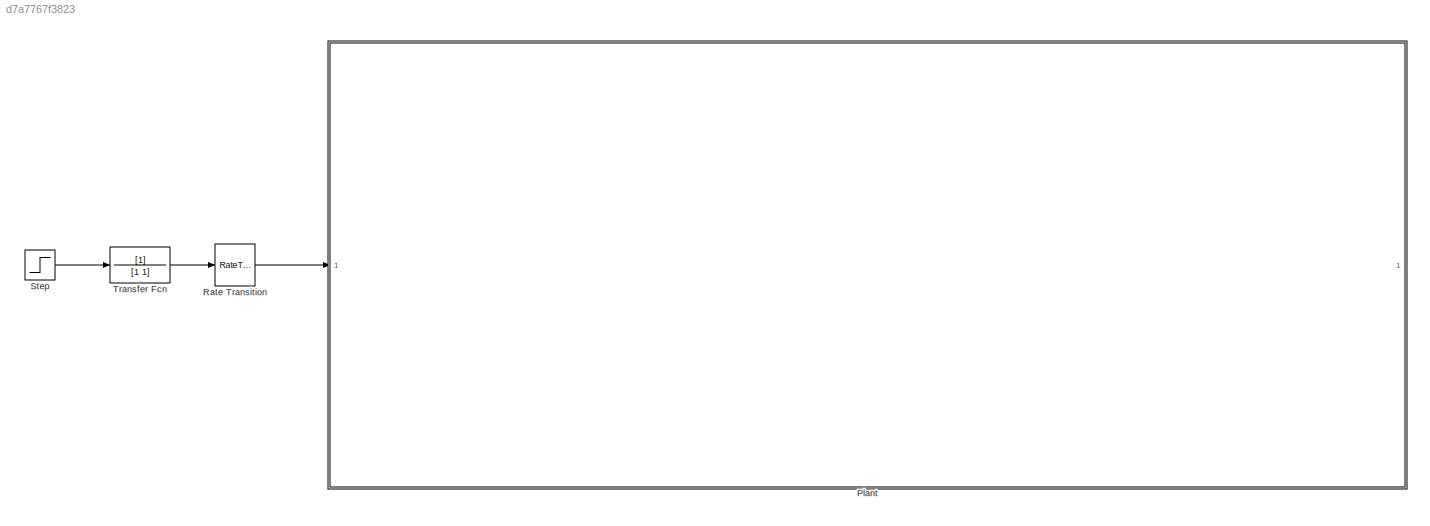
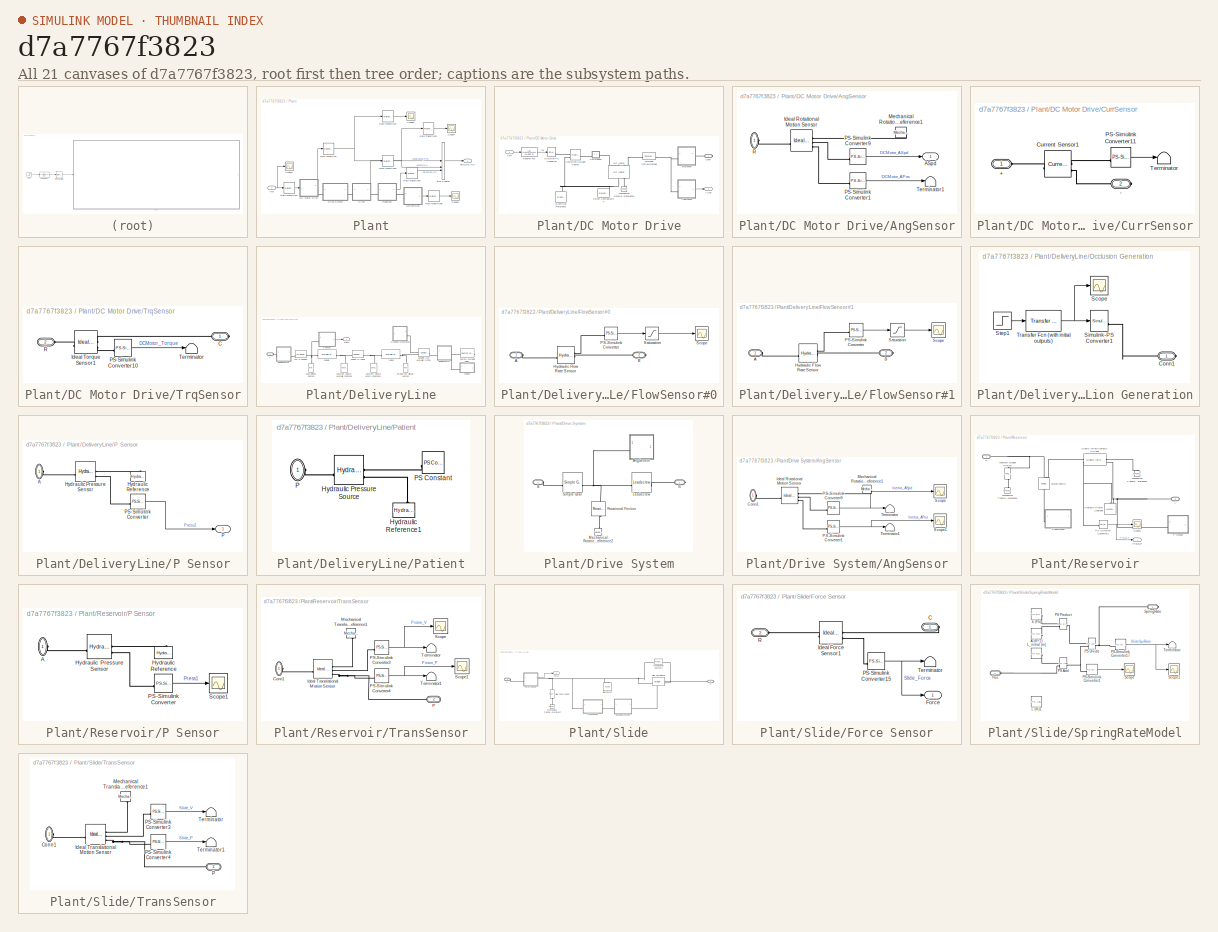
[diagram: thumbnail index - all 21 canvases of the model, root first then tree order]
MODEL slx_d7a7767f3823
KIND model
CONFIG AbsTol = auto
CONFIG EnableMultiTasking = off
CONFIG FixedStep = auto
CONFIG MaxStep = 0.001
CONFIG MinStep = auto
CONFIG RelTol = 1e-3
CONFIG SampleTimeConstraint = Unconstrained
CONFIG SolverName = ode23t
CONFIG StartTime = 0.0
CONFIG StopTime = 10.0
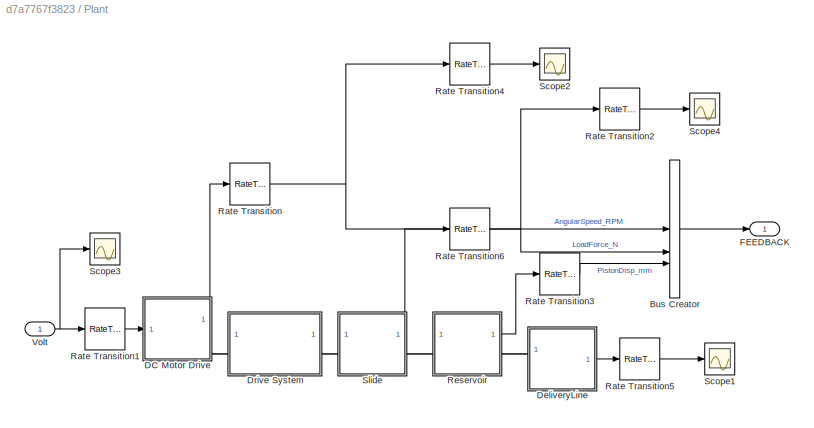
BLOCK [SubSystem] Plant
BLOCK [BusCreator] Plant/Bus Creator
  DisplayOption = bar
  InheritFromInputs = on
  Inputs = 'AngularSpeed_RPM','LoadForce_N','PistonDisp_mm'
  NonVirtualBus = on
  OutDataTypeStr = Bus: FEEDBACK
BLOCK [SubSystem] Plant/DC Motor Drive
BLOCK [Outport] Plant/DC Motor Drive/ASpd
BLOCK [SubSystem] Plant/DC Motor Drive/AngSensor
BLOCK [Outport] Plant/DC Motor Drive/AngSensor/ASpd
BLOCK [Reference] Plant/DC Motor Drive/AngSensor/Ideal Rotational Motion Sensor  REF=fl_lib/Mechanical/Mechanical Sensors/Ideal Rotational
Motion Sensor
  SourceBlock = fl_lib/Mechanical/Mechanical Sensors/Ideal Rotational\nMotion Sensor
  SourceType = Ideal Rotational\nMotion Sensor
BLOCK [Reference] Plant/DC Motor Drive/AngSensor/Mechanical Rotational Reference1  REF=fl_lib/Mechanical/Rotational Elements/Mechanical
Rotational Reference
  NameLocation = top
  SourceBlock = fl_lib/Mechanical/Rotational Elements/Mechanical\nRotational Reference
  SourceType = Mechanical\nRotational Reference
BLOCK [Reference] Plant/DC Motor Drive/AngSensor/PS-Simulink Converter1  REF=nesl_utility/PS-Simulink
Converter
  SourceBlock = nesl_utility/PS-Simulink\nConverter
  SourceType = PS-Simulink\nConverter
BLOCK [Reference] Plant/DC Motor Drive/AngSensor/PS-Simulink Converter9  REF=nesl_utility/PS-Simulink
Converter
  NameLocation = top
  SourceBlock = nesl_utility/PS-Simulink\nConverter
  SourceType = PS-Simulink\nConverter
BLOCK [PMIOPort] Plant/DC Motor Drive/AngSensor/R
  Side = Left
BLOCK [Terminator] Plant/DC Motor Drive/AngSensor/Terminator1
BLOCK [PMIOPort] Plant/DC Motor Drive/Conn
  Side = Right
BLOCK [Reference] Plant/DC Motor Drive/Controlled Voltage Source  REF=fl_lib/Electrical/Electrical Sources/Controlled Voltage
Source
  SourceBlock = fl_lib/Electrical/Electrical Sources/Controlled Voltage\nSource
  SourceType = Controlled Voltage\nSource
BLOCK [SubSystem] Plant/DC Motor Drive/CurrSensor
BLOCK [PMIOPort] Plant/DC Motor Drive/CurrSensor/+
  Side = Left
BLOCK [PMIOPort] Plant/DC Motor Drive/CurrSensor/-
  Port = 2
  Side = Right
BLOCK [Reference] Plant/DC Motor Drive/CurrSensor/Current Sensor1  REF=fl_lib/Electrical/Electrical Sensors/Current Sensor
  SourceBlock = fl_lib/Electrical/Electrical Sensors/Current Sensor
  SourceType = Current Sensor
BLOCK [Reference] Plant/DC Motor Drive/CurrSensor/PS-Simulink Converter11  REF=nesl_utility/PS-Simulink
Converter
  NameLocation = top
  SourceBlock = nesl_utility/PS-Simulink\nConverter
  SourceType = PS-Simulink\nConverter
BLOCK [Terminator] Plant/DC Motor Drive/CurrSensor/Terminator
BLOCK [Reference] Plant/DC Motor Drive/DC Motor  REF=ee_lib/Electromechanical/Brushed Motors/DC Motor
  NameLocation = right
  SourceBlock = ee_lib/Electromechanical/Brushed Motors/DC Motor
  SourceType = DC Motor
BLOCK [Reference] Plant/DC Motor Drive/Electrical Reference  REF=fl_lib/Electrical/Electrical Elements/Electrical Reference
  NameLocation = left
  SourceBlock = fl_lib/Electrical/Electrical Elements/Electrical Reference
  SourceType = Electrical Reference
BLOCK [Reference] Plant/DC Motor Drive/Mechanical Rotational Reference  REF=fl_lib/Mechanical/Rotational Elements/Mechanical
Rotational Reference
  NameLocation = right
  SourceBlock = fl_lib/Mechanical/Rotational Elements/Mechanical\nRotational Reference
  SourceType = Mechanical\nRotational Reference
BLOCK [Reference] Plant/DC Motor Drive/Simulink-PS Converter  REF=nesl_utility/Simulink-PS
Converter
  SourceBlock = nesl_utility/Simulink-PS\nConverter
  SourceType = Simulink-PS\nConverter
BLOCK [Reference] Plant/DC Motor Drive/Solver Configuration  REF=nesl_utility/Solver
Configuration
  SourceBlock = nesl_utility/Solver\nConfiguration
  SourceType = Solver\nConfiguration
BLOCK [Reference] Plant/DC Motor Drive/Torsional Spring-Damper  REF=sdl_lib/Couplings & Drives/Torsional
Spring-Damper
  SourceBlock = sdl_lib/Couplings & Drives/Torsional\nSpring-Damper
  SourceType = Torsional\nSpring-Damper
BLOCK [TransferFcn] Plant/DC Motor Drive/Transfer Fcn
  Denominator = [0.001 1]
BLOCK [SubSystem] Plant/DC Motor Drive/TrqSensor
BLOCK [PMIOPort] Plant/DC Motor Drive/TrqSensor/C
  Side = Right
BLOCK [Reference] Plant/DC Motor Drive/TrqSensor/Ideal Torque Sensor1  REF=fl_lib/Mechanical/Mechanical Sensors/Ideal Torque Sensor
  NameLocation = top
  SourceBlock = fl_lib/Mechanical/Mechanical Sensors/Ideal Torque Sensor
  SourceType = Ideal Torque Sensor
BLOCK [Reference] Plant/DC Motor Drive/TrqSensor/PS-Simulink Converter10  REF=nesl_utility/PS-Simulink
Converter
  SourceBlock = nesl_utility/PS-Simulink\nConverter
  SourceType = PS-Simulink\nConverter
BLOCK [PMIOPort] Plant/DC Motor Drive/TrqSensor/R
  Port = 2
  Side = Left
BLOCK [Terminator] Plant/DC Motor Drive/TrqSensor/Terminator
BLOCK [Inport] Plant/DC Motor Drive/Volt
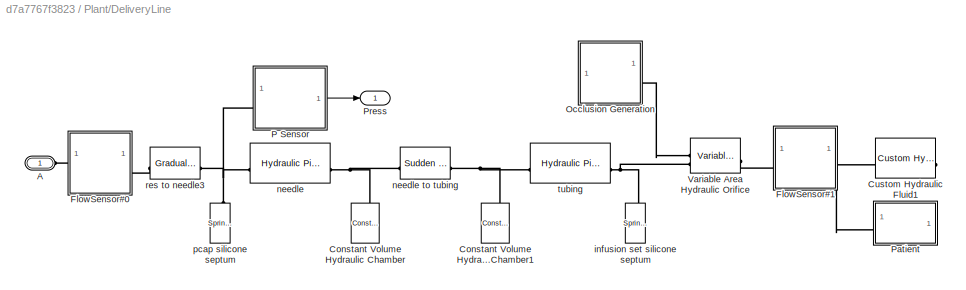
BLOCK [SubSystem] Plant/DeliveryLine
BLOCK [PMIOPort] Plant/DeliveryLine/A
  Side = Left
BLOCK [Reference] Plant/DeliveryLine/Constant Volume Hydraulic Chamber  REF=fl_lib/Hydraulic/Hydraulic Elements/Constant Volume
Hydraulic Chamber
  NameLocation = right
  SourceBlock = fl_lib/Hydraulic/Hydraulic Elements/Constant Volume\nHydraulic Chamber
  SourceType = Constant Volume\nHydraulic Chamber
BLOCK [Reference] Plant/DeliveryLine/Constant Volume Hydraulic Chamber1  REF=fl_lib/Hydraulic/Hydraulic Elements/Constant Volume
Hydraulic Chamber
  NameLocation = right
  SourceBlock = fl_lib/Hydraulic/Hydraulic Elements/Constant Volume\nHydraulic Chamber
  SourceType = Constant Volume\nHydraulic Chamber
BLOCK [Reference] Plant/DeliveryLine/Custom Hydraulic Fluid1  REF=fl_lib/Hydraulic/Hydraulic Utilities/Custom Hydraulic
Fluid
  NameLocation = top
  SourceBlock = fl_lib/Hydraulic/Hydraulic Utilities/Custom Hydraulic\nFluid
  SourceType = Custom Hydraulic\nFluid
BLOCK [SubSystem] Plant/DeliveryLine/FlowSensor#0
BLOCK [PMIOPort] Plant/DeliveryLine/FlowSensor#0/A
  Side = Left
BLOCK [PMIOPort] Plant/DeliveryLine/FlowSensor#0/B
  Port = 2
  Side = Right
BLOCK [Reference] Plant/DeliveryLine/FlowSensor#0/Hydraulic Flow Rate Sensor  REF=fl_lib/Hydraulic/Hydraulic Sensors/Hydraulic Flow Rate
Sensor
  SourceBlock = fl_lib/Hydraulic/Hydraulic Sensors/Hydraulic Flow Rate\nSensor
  SourceType = Hydraulic Flow Rate\nSensor
BLOCK [Reference] Plant/DeliveryLine/FlowSensor#0/PS-Simulink Converter  REF=nesl_utility/PS-Simulink
Converter
  SourceBlock = nesl_utility/PS-Simulink\nConverter
  SourceType = PS-Simulink\nConverter
BLOCK [Saturate] Plant/DeliveryLine/FlowSensor#0/Saturation
  LowerLimit = 0
  UpperLimit = inf
BLOCK [Scope] Plant/DeliveryLine/FlowSensor#0/Scope
  Floating = off
  NumInputPorts = 1
  ScopeSpecificationString = Simulink.scopes.TimeScopeBlockCfg('CurrentConfiguration', extmgr.ConfigurationSet(extmgr.Configuration('Core','General UI',true),extmgr.Configuration('Core','Source UI',true),extmgr.Configuration('Sources','WiredSimulink',true,'DataLoggingVariableName','ScopeData4'),extmgr.Configuration('Visuals','Time Domain',true,'SerializedDisplays',{struct('MinYLimReal','-11.21441','MaxYLimReal','100.92966','Y...<+1485ch>
BLOCK [SubSystem] Plant/DeliveryLine/FlowSensor#1
BLOCK [PMIOPort] Plant/DeliveryLine/FlowSensor#1/A
  Side = Left
BLOCK [PMIOPort] Plant/DeliveryLine/FlowSensor#1/B
  Port = 2
  Side = Right
BLOCK [Reference] Plant/DeliveryLine/FlowSensor#1/Hydraulic Flow Rate Sensor  REF=fl_lib/Hydraulic/Hydraulic Sensors/Hydraulic Flow Rate
Sensor
  SourceBlock = fl_lib/Hydraulic/Hydraulic Sensors/Hydraulic Flow Rate\nSensor
  SourceType = Hydraulic Flow Rate\nSensor
BLOCK [Reference] Plant/DeliveryLine/FlowSensor#1/PS-Simulink Converter  REF=nesl_utility/PS-Simulink
Converter
  SourceBlock = nesl_utility/PS-Simulink\nConverter
  SourceType = PS-Simulink\nConverter
BLOCK [Saturate] Plant/DeliveryLine/FlowSensor#1/Saturation
  Commented = through
  LowerLimit = 0
  UpperLimit = 5000
BLOCK [Scope] Plant/DeliveryLine/FlowSensor#1/Scope
  Floating = off
  NumInputPorts = 1
  ScopeSpecificationString = Simulink.scopes.TimeScopeBlockCfg('CurrentConfiguration', extmgr.ConfigurationSet(extmgr.Configuration('Core','General UI',true),extmgr.Configuration('Core','Source UI',true),extmgr.Configuration('Sources','WiredSimulink',true,'DataLoggingVariableName','ScopeData4'),extmgr.Configuration('Visuals','Time Domain',true,'SerializedDisplays',{struct('MinYLimReal','-42.41201','MaxYLimReal','113.06629','Y...<+1486ch>
BLOCK [SubSystem] Plant/DeliveryLine/Occlusion Generation
BLOCK [PMIOPort] Plant/DeliveryLine/Occlusion Generation/Conn1
  Side = Right
BLOCK [Scope] Plant/DeliveryLine/Occlusion Generation/Scope
  Floating = off
  NumInputPorts = 1
  ScopeSpecificationString = Simulink.scopes.TimeScopeBlockCfg('CurrentConfiguration', extmgr.ConfigurationSet(extmgr.Configuration('Core','General UI',true),extmgr.Configuration('Core','Source UI',true),extmgr.Configuration('Sources','WiredSimulink',true,'DataLoggingVariableName','ScopeData1'),extmgr.Configuration('Visuals','Time Domain',true,'SerializedDisplays',{struct('MinYLimReal','-0.00000001','MaxYLimReal','0.00000013'...<+1418ch>
BLOCK [Reference] Plant/DeliveryLine/Occlusion Generation/Simulink-PS Converter1  REF=nesl_utility/Simulink-PS
Converter
  SourceBlock = nesl_utility/Simulink-PS\nConverter
  SourceType = Simulink-PS\nConverter
BLOCK [Step] Plant/DeliveryLine/Occlusion Generation/Step1
  After = reserv_str.Tubing.Area*(1-const_Occl_Pct)
  Before = reserv_str.Tubing.Area
  SampleTime = 0
  Time = reserv_str.Occl.Time
BLOCK [Reference] Plant/DeliveryLine/Occlusion Generation/Transfer Fcn (with initial outputs)  REF=simulink_extras/Additional
Linear/Transfer Fcn
(with initial outputs)
  SourceBlock = simulink_extras/Additional\nLinear/Transfer Fcn\n(with initial outputs)
  SourceType = Transfer Function with Initial Outputs
BLOCK [SubSystem] Plant/DeliveryLine/P Sensor
BLOCK [PMIOPort] Plant/DeliveryLine/P Sensor/A
  Side = Left
BLOCK [Reference] Plant/DeliveryLine/P Sensor/Hydraulic Pressure Sensor  REF=fl_lib/Hydraulic/Hydraulic Sensors/Hydraulic Pressure
Sensor
  SourceBlock = fl_lib/Hydraulic/Hydraulic Sensors/Hydraulic Pressure\nSensor
  SourceType = Hydraulic Pressure\nSensor
BLOCK [Reference] Plant/DeliveryLine/P Sensor/Hydraulic Reference  REF=fl_lib/Hydraulic/Hydraulic Elements/Hydraulic Reference
  NameLocation = right
  SourceBlock = fl_lib/Hydraulic/Hydraulic Elements/Hydraulic Reference
  SourceType = Hydraulic Reference
BLOCK [Outport] Plant/DeliveryLine/P Sensor/P
BLOCK [Reference] Plant/DeliveryLine/P Sensor/PS-Simulink Converter  REF=nesl_utility/PS-Simulink
Converter
  SourceBlock = nesl_utility/PS-Simulink\nConverter
  SourceType = PS-Simulink\nConverter
BLOCK [SubSystem] Plant/DeliveryLine/Patient
BLOCK [Reference] Plant/DeliveryLine/Patient/Hydraulic Pressure Source  REF=fl_lib/Hydraulic/Hydraulic Sources/Hydraulic Pressure
Source
  SourceBlock = fl_lib/Hydraulic/Hydraulic Sources/Hydraulic Pressure\nSource
  SourceType = Hydraulic Pressure\nSource
BLOCK [Reference] Plant/DeliveryLine/Patient/Hydraulic Reference1  REF=fl_lib/Hydraulic/Hydraulic Elements/Hydraulic Reference
  NameLocation = right
  SourceBlock = fl_lib/Hydraulic/Hydraulic Elements/Hydraulic Reference
  SourceType = Hydraulic Reference
BLOCK [PMIOPort] Plant/DeliveryLine/Patient/P
  Side = Left
BLOCK [Reference] Plant/DeliveryLine/Patient/PS Constant  REF=fl_lib/Physical Signals/Sources/PS Constant
  SourceBlock = fl_lib/Physical Signals/Sources/PS Constant
  SourceType = PS Constant
BLOCK [Outport] Plant/DeliveryLine/Press
BLOCK [Reference] Plant/DeliveryLine/Variable Area Hydraulic Orifice  REF=fl_lib/Hydraulic/Hydraulic Elements/Variable Area
Hydraulic Orifice
  SourceBlock = fl_lib/Hydraulic/Hydraulic Elements/Variable Area\nHydraulic Orifice
  SourceType = Variable Area\nHydraulic Orifice
BLOCK [Reference] Plant/DeliveryLine/infusion set silicone septum  REF=sh_lib/Accumulators/Spring-Loaded
Accumulator
  NameLocation = right
  SourceBlock = sh_lib/Accumulators/Spring-Loaded\nAccumulator
  SourceType = Spring-Loaded\nAccumulator
BLOCK [Reference] Plant/DeliveryLine/needle  REF=sh_lib/Pipelines/Hydraulic Pipeline
  SourceBlock = sh_lib/Pipelines/Hydraulic Pipeline
  SourceType = Hydraulic Pipeline
BLOCK [Reference] Plant/DeliveryLine/needle to tubing  REF=sh_lib/Local Hydraulic
Resistances/Sudden Area Change
  SourceBlock = sh_lib/Local Hydraulic\nResistances/Sudden Area Change
  SourceType = Sudden Area Change
BLOCK [Reference] Plant/DeliveryLine/pcap silicone septum  REF=sh_lib/Accumulators/Spring-Loaded
Accumulator
  NameLocation = right
  SourceBlock = sh_lib/Accumulators/Spring-Loaded\nAccumulator
  SourceType = Spring-Loaded\nAccumulator
BLOCK [Reference] Plant/DeliveryLine/res to needle3  REF=sh_lib/Local Hydraulic
Resistances/Gradual Area Change
  SourceBlock = sh_lib/Local Hydraulic\nResistances/Gradual Area Change
  SourceType = Gradual Area Change
BLOCK [Reference] Plant/DeliveryLine/tubing  REF=sh_lib/Pipelines/Hydraulic Pipeline
  SourceBlock = sh_lib/Pipelines/Hydraulic Pipeline
  SourceType = Hydraulic Pipeline
BLOCK [SubSystem] Plant/Drive System
BLOCK [SubSystem] Plant/Drive System/AngSensor
BLOCK [PMIOPort] Plant/Drive System/AngSensor/Conn1
  NameLocation = top
  Side = Left
BLOCK [Reference] Plant/Drive System/AngSensor/Ideal Rotational Motion Sensor  REF=fl_lib/Mechanical/Mechanical Sensors/Ideal Rotational
Motion Sensor
  SourceBlock = fl_lib/Mechanical/Mechanical Sensors/Ideal Rotational\nMotion Sensor
  SourceType = Ideal Rotational\nMotion Sensor
BLOCK [Reference] Plant/Drive System/AngSensor/Mechanical Rotational Reference1  REF=fl_lib/Mechanical/Rotational Elements/Mechanical
Rotational Reference
  NameLocation = top
  SourceBlock = fl_lib/Mechanical/Rotational Elements/Mechanical\nRotational Reference
  SourceType = Mechanical\nRotational Reference
BLOCK [Reference] Plant/Drive System/AngSensor/PS-Simulink Converter1  REF=nesl_utility/PS-Simulink
Converter
  SourceBlock = nesl_utility/PS-Simulink\nConverter
  SourceType = PS-Simulink\nConverter
BLOCK [Reference] Plant/Drive System/AngSensor/PS-Simulink Converter9  REF=nesl_utility/PS-Simulink
Converter
  NameLocation = top
  SourceBlock = nesl_utility/PS-Simulink\nConverter
  SourceType = PS-Simulink\nConverter
BLOCK [Scope] Plant/Drive System/AngSensor/Scope
  Floating = off
  NumInputPorts = 1
  ScopeSpecificationString = Simulink.scopes.TimeScopeBlockCfg('CurrentConfiguration', extmgr.ConfigurationSet(extmgr.Configuration('Core','General UI',true),extmgr.Configuration('Core','Source UI',true),extmgr.Configuration('Sources','WiredSimulink',true),extmgr.Configuration('Visuals','Time Domain',true,'SerializedDisplays',{struct('MinYLimReal','-1.50405','MaxYLimReal','0.16757','YLabelReal','','MinYLimMag','0.00000','MaxY...<+1660ch>
BLOCK [Scope] Plant/Drive System/AngSensor/Scope1
  Floating = off
  NumInputPorts = 1
  ScopeSpecificationString = Simulink.scopes.TimeScopeBlockCfg('CurrentConfiguration', extmgr.ConfigurationSet(extmgr.Configuration('Core','General UI',true),extmgr.Configuration('Core','Source UI',true),extmgr.Configuration('Sources','WiredSimulink',true,'DataLoggingVariableName','ScopeData1'),extmgr.Configuration('Visuals','Time Domain',true,'SerializedDisplays',{struct('MinYLimReal','-187.69904','MaxYLimReal','20.85545','Y...<+1383ch>
BLOCK [Terminator] Plant/Drive System/AngSensor/Terminator
BLOCK [Terminator] Plant/Drive System/AngSensor/Terminator1
BLOCK [PMIOPort] Plant/Drive System/B
  Side = Left
BLOCK [Reference] Plant/Drive System/Leadscrew  REF=sdl_lib/Gears/Rotational-
Translational/Leadscrew
  SourceBlock = sdl_lib/Gears/Rotational-\nTranslational/Leadscrew
  SourceType = Leadscrew
BLOCK [Reference] Plant/Drive System/Mechanical Rotational Reference2  REF=fl_lib/Mechanical/Rotational Elements/Mechanical
Rotational Reference
  NameLocation = right
  SourceBlock = fl_lib/Mechanical/Rotational Elements/Mechanical\nRotational Reference
  SourceType = Mechanical\nRotational Reference
BLOCK [PMIOPort] Plant/Drive System/N
  Port = 2
  Side = Right
BLOCK [Reference] Plant/Drive System/Rotational Friction  REF=fl_lib/Mechanical/Rotational Elements/Rotational Friction
  NameLocation = right
  SourceBlock = fl_lib/Mechanical/Rotational Elements/Rotational Friction
  SourceType = Rotational Friction
BLOCK [Reference] Plant/Drive System/Simple Gear  REF=sdl_lib/Gears/Simple Gear
  SourceBlock = sdl_lib/Gears/Simple Gear
  SourceType = Simple Gear
BLOCK [Outport] Plant/FEEDBACK
  OutDataTypeStr = Bus: FEEDBACK
BLOCK [RateTransition] Plant/Rate Transition
  OutPortSampleTime = 0.001
BLOCK [RateTransition] Plant/Rate Transition1
BLOCK [RateTransition] Plant/Rate Transition2
  OutPortSampleTime = 0.01
BLOCK [RateTransition] Plant/Rate Transition3
  OutPortSampleTime = 0.001
BLOCK [RateTransition] Plant/Rate Transition4
  OutPortSampleTime = 0.01
BLOCK [RateTransition] Plant/Rate Transition5
  OutPortSampleTime = 0.01
BLOCK [RateTransition] Plant/Rate Transition6
  OutPortSampleTime = 0.001
BLOCK [SubSystem] Plant/Reservoir
BLOCK [PMIOPort] Plant/Reservoir/A
  Port = 2
  Side = Right
BLOCK [Reference] Plant/Reservoir/Hydraulic Piston Chamber  REF=fl_lib/Hydraulic/Hydraulic Elements/Hydraulic Piston
Chamber
  Commented = on
  NameLocation = right
  SourceBlock = fl_lib/Hydraulic/Hydraulic Elements/Hydraulic Piston\nChamber
  SourceType = Hydraulic Piston\nChamber
BLOCK [Reference] Plant/Reservoir/Mechanical Translational Reference1  REF=fl_lib/Mechanical/Translational
Elements/Mechanical
Translational
Reference
  NameLocation = right
  SourceBlock = fl_lib/Mechanical/Translational\nElements/Mechanical\nTranslational\nReference
  SourceType = Mechanical\nTranslational\nReference
BLOCK [Reference] Plant/Reservoir/Mechanical Translational Reference2  REF=fl_lib/Mechanical/Translational
Elements/Mechanical
Translational
Reference
  NameLocation = right
  SourceBlock = fl_lib/Mechanical/Translational\nElements/Mechanical\nTranslational\nReference
  SourceType = Mechanical\nTranslational\nReference
BLOCK [SubSystem] Plant/Reservoir/P Sensor
BLOCK [PMIOPort] Plant/Reservoir/P Sensor/A
  Side = Left
BLOCK [Reference] Plant/Reservoir/P Sensor/Hydraulic Pressure Sensor  REF=fl_lib/Hydraulic/Hydraulic Sensors/Hydraulic Pressure
Sensor
  SourceBlock = fl_lib/Hydraulic/Hydraulic Sensors/Hydraulic Pressure\nSensor
  SourceType = Hydraulic Pressure\nSensor
BLOCK [Reference] Plant/Reservoir/P Sensor/Hydraulic Reference  REF=fl_lib/Hydraulic/Hydraulic Elements/Hydraulic Reference
  NameLocation = right
  SourceBlock = fl_lib/Hydraulic/Hydraulic Elements/Hydraulic Reference
  SourceType = Hydraulic Reference
BLOCK [Reference] Plant/Reservoir/P Sensor/PS-Simulink Converter  REF=nesl_utility/PS-Simulink
Converter
  SourceBlock = nesl_utility/PS-Simulink\nConverter
  SourceType = PS-Simulink\nConverter
BLOCK [Scope] Plant/Reservoir/P Sensor/Scope1
  Floating = off
  NumInputPorts = 1
  ScopeSpecificationString = Simulink.scopes.TimeScopeBlockCfg('CurrentConfiguration', extmgr.ConfigurationSet(extmgr.Configuration('Core','General UI',true),extmgr.Configuration('Core','Source UI',true),extmgr.Configuration('Sources','WiredSimulink',true),extmgr.Configuration('Visuals','Time Domain',true,'SerializedDisplays',{struct('MinYLimReal','93703.89588','MaxYLimReal','119658.32558','YLabelReal','','MinYLimMag','93703....<+1406ch>
BLOCK [Reference] Plant/Reservoir/PS-Simulink Converter2  REF=nesl_utility/PS-Simulink
Converter
  SourceBlock = nesl_utility/PS-Simulink\nConverter
  SourceType = PS-Simulink\nConverter
BLOCK [Outport] Plant/Reservoir/Piston_P
BLOCK [PMIOPort] Plant/Reservoir/R
  Side = Left
BLOCK [Scope] Plant/Reservoir/Scope2
  Floating = off
  NumInputPorts = 1
  ScopeSpecificationString = Simulink.scopes.TimeScopeBlockCfg('CurrentConfiguration', extmgr.ConfigurationSet(extmgr.Configuration('Core','General UI',true),extmgr.Configuration('Core','Source UI',true),extmgr.Configuration('Sources','WiredSimulink',true,'DataLoggingVariableName','ScopeData6'),extmgr.Configuration('Visuals','Time Domain',true,'SerializedDisplays',{struct('MinYLimReal','-26.58008','MaxYLimReal','-26.5363','YL...<+1728ch>
BLOCK [Reference] Plant/Reservoir/Single-Acting Hydraulic Cylinder  REF=sh_lib/Hydraulic Cylinders/Single-Acting
Hydraulic Cylinder
  SourceBlock = sh_lib/Hydraulic Cylinders/Single-Acting\nHydraulic Cylinder
  SourceType = Single-Acting\nHydraulic Cylinder
BLOCK [SubSystem] Plant/Reservoir/TransSensor
BLOCK [PMIOPort] Plant/Reservoir/TransSensor/Conn1
  Side = Left
BLOCK [Reference] Plant/Reservoir/TransSensor/Ideal Translational Motion Sensor  REF=fl_lib/Mechanical/Mechanical Sensors/Ideal Translational
Motion Sensor
  SourceBlock = fl_lib/Mechanical/Mechanical Sensors/Ideal Translational\nMotion Sensor
  SourceType = Ideal Translational\nMotion Sensor
BLOCK [Reference] Plant/Reservoir/TransSensor/Mechanical Translational Reference1  REF=fl_lib/Mechanical/Translational
Elements/Mechanical
Translational
Reference
  NameLocation = left
  SourceBlock = fl_lib/Mechanical/Translational\nElements/Mechanical\nTranslational\nReference
  SourceType = Mechanical\nTranslational\nReference
BLOCK [PMIOPort] Plant/Reservoir/TransSensor/P
  Port = 2
  Side = Right
BLOCK [Reference] Plant/Reservoir/TransSensor/PS-Simulink Converter3  REF=nesl_utility/PS-Simulink
Converter
  SourceBlock = nesl_utility/PS-Simulink\nConverter
  SourceType = PS-Simulink\nConverter
BLOCK [Reference] Plant/Reservoir/TransSensor/PS-Simulink Converter4  REF=nesl_utility/PS-Simulink
Converter
  SourceBlock = nesl_utility/PS-Simulink\nConverter
  SourceType = PS-Simulink\nConverter
BLOCK [Scope] Plant/Reservoir/TransSensor/Scope
  Floating = off
  NumInputPorts = 1
  ScopeSpecificationString = Simulink.scopes.TimeScopeBlockCfg('CurrentConfiguration', extmgr.ConfigurationSet(extmgr.Configuration('Core','General UI',true),extmgr.Configuration('Core','Source UI',true),extmgr.Configuration('Sources','WiredSimulink',true,'DataLoggingVariableName','ScopeData4'),extmgr.Configuration('Visuals','Time Domain',true,'SerializedDisplays',{struct('MinYLimReal','-0.20888','MaxYLimReal','1.35196','YLab...<+1467ch>
BLOCK [Scope] Plant/Reservoir/TransSensor/Scope1
  Floating = off
  NumInputPorts = 1
  ScopeSpecificationString = Simulink.scopes.TimeScopeBlockCfg('CurrentConfiguration', extmgr.ConfigurationSet(extmgr.Configuration('Core','General UI',true),extmgr.Configuration('Core','Source UI',true),extmgr.Configuration('Sources','WiredSimulink',true,'DataLoggingVariableName','ScopeData2'),extmgr.Configuration('Visuals','Time Domain',true,'SerializedDisplays',{struct('MinYLimReal','-0.01896','MaxYLimReal','0.16359','YLab...<+1438ch>
BLOCK [Terminator] Plant/Reservoir/TransSensor/Terminator
BLOCK [Terminator] Plant/Reservoir/TransSensor/Terminator1
BLOCK [Reference] Plant/Reservoir/piston inertia  REF=fl_lib/Mechanical/Translational
Elements/Mass
  NameLocation = right
  SourceBlock = fl_lib/Mechanical/Translational\nElements/Mass
  SourceType = Mass
BLOCK [Reference] Plant/Reservoir/reservoir plunger friction  REF=fl_lib/Mechanical/Translational
Elements/Translational
Friction
  NameLocation = left
  SourceBlock = fl_lib/Mechanical/Translational\nElements/Translational\nFriction
  SourceType = Translational\nFriction
BLOCK [Scope] Plant/Scope1
  Floating = off
  NumInputPorts = 1
  ScopeSpecificationString = Simulink.scopes.TimeScopeBlockCfg('CurrentConfiguration', extmgr.ConfigurationSet(extmgr.Configuration('Core','General UI',true),extmgr.Configuration('Core','Source UI',true),extmgr.Configuration('Sources','WiredSimulink',true,'DataLoggingVariableName','Result_Press','DataLogging',true,'DataLoggingSaveFormat','StructureWithTime'),extmgr.Configuration('Visuals','Time Domain',true,'SerializedDisplay...<+1687ch>
BLOCK [Scope] Plant/Scope2
  Floating = off
  NumInputPorts = 1
  ScopeSpecificationString = Simulink.scopes.TimeScopeBlockCfg('CurrentConfiguration', extmgr.ConfigurationSet(extmgr.Configuration('Core','General UI',true),extmgr.Configuration('Core','Source UI',true),extmgr.Configuration('Sources','WiredSimulink',true,'DataLoggingVariableName','Result_MotorSpeed','DataLogging',true,'DataLoggingSaveFormat','StructureWithTime'),extmgr.Configuration('Visuals','Time Domain',true,'SerializedDi...<+1665ch>
BLOCK [Scope] Plant/Scope3
  Floating = off
  NumInputPorts = 1
  ScopeSpecificationString = Simulink.scopes.TimeScopeBlockCfg('CurrentConfiguration', extmgr.ConfigurationSet(extmgr.Configuration('Core','General UI',true),extmgr.Configuration('Core','Source UI',true),extmgr.Configuration('Sources','WiredSimulink',true,'DataLoggingVariableName','MotorVoltage','DataLogging',true,'DataLoggingSaveFormat','StructureWithTime'),extmgr.Configuration('Visuals','Time Domain',true,'SerializedDisplay...<+1781ch>
BLOCK [Scope] Plant/Scope4
  Floating = off
  NumInputPorts = 1
  ScopeSpecificationString = Simulink.scopes.TimeScopeBlockCfg('CurrentConfiguration', extmgr.ConfigurationSet(extmgr.Configuration('Core','General UI',true),extmgr.Configuration('Core','Source UI',true),extmgr.Configuration('Sources','WiredSimulink',true,'DataLoggingVariableName','Result_Force','DataLogging',true,'DataLoggingSaveFormat','StructureWithTime'),extmgr.Configuration('Visuals','Time Domain',true,'SerializedDisplay...<+1646ch>
BLOCK [SubSystem] Plant/Slide
BLOCK [PMIOPort] Plant/Slide/C
  Port = 2
  Side = Right
BLOCK [Outport] Plant/Slide/Force
BLOCK [SubSystem] Plant/Slide/Force Sensor
BLOCK [PMIOPort] Plant/Slide/Force Sensor/C
  Side = Right
BLOCK [Outport] Plant/Slide/Force Sensor/Force
BLOCK [Reference] Plant/Slide/Force Sensor/Ideal Force Sensor1  REF=fl_lib/Mechanical/Mechanical Sensors/Ideal Force Sensor
  NameLocation = top
  SourceBlock = fl_lib/Mechanical/Mechanical Sensors/Ideal Force Sensor
  SourceType = Ideal Force Sensor
BLOCK [Reference] Plant/Slide/Force Sensor/PS-Simulink Converter15  REF=nesl_utility/PS-Simulink
Converter
  SourceBlock = nesl_utility/PS-Simulink\nConverter
  SourceType = PS-Simulink\nConverter
BLOCK [PMIOPort] Plant/Slide/Force Sensor/R
  Port = 2
  Side = Left
BLOCK [Terminator] Plant/Slide/Force Sensor/Terminator
BLOCK [Reference] Plant/Slide/Mechanical Translational Reference7  REF=fl_lib/Mechanical/Translational
Elements/Mechanical
Translational
Reference
  NameLocation = right
  SourceBlock = fl_lib/Mechanical/Translational\nElements/Mechanical\nTranslational\nReference
  SourceType = Mechanical\nTranslational\nReference
BLOCK [PMIOPort] Plant/Slide/R
  Side = Left
BLOCK [SubSystem] Plant/Slide/SpringRateModel
BLOCK [Reference] Plant/Slide/SpringRateModel/A (m^2)  REF=fl_lib/Physical Signals/Sources/PS Constant
  SourceBlock = fl_lib/Physical Signals/Sources/PS Constant
  SourceType = PS Constant
BLOCK [Reference] Plant/Slide/SpringRateModel/E (Pa)  REF=fl_lib/Physical Signals/Sources/PS Constant
  SourceBlock = fl_lib/Physical Signals/Sources/PS Constant
  SourceType = PS Constant
BLOCK [Reference] Plant/Slide/SpringRateModel/L (m)1  REF=fl_ps_legacy_lib/Legacy Physical
Signals/Nonlinear Operators/PS Abs
  Commented = on
  SourceBlock = fl_ps_legacy_lib/Legacy Physical\nSignals/Nonlinear Operators/PS Abs
  SourceType = PS Abs
BLOCK [Reference] Plant/Slide/SpringRateModel/L_initial (m)  REF=fl_lib/Physical Signals/Sources/PS Constant
  SourceBlock = fl_lib/Physical Signals/Sources/PS Constant
  SourceType = PS Constant
BLOCK [Reference] Plant/Slide/SpringRateModel/PS Add  REF=fl_lib/Physical Signals/Functions/PS Add
  LibrarySourceBlock = fl_ps_legacy_lib/Legacy Physical\nSignals/Functions/PS Add
  SourceBlock = fl_lib/Physical Signals/Functions/PS Add
  SourceType = PS Add
BLOCK [Reference] Plant/Slide/SpringRateModel/PS Divide  REF=fl_lib/Physical Signals/Functions/PS Divide
  LibrarySourceBlock = fl_ps_legacy_lib/Legacy Physical\nSignals/Functions/PS Divide
  SourceBlock = fl_lib/Physical Signals/Functions/PS Divide
  SourceType = PS Divide
BLOCK [Reference] Plant/Slide/SpringRateModel/PS Product  REF=fl_lib/Physical Signals/Functions/PS Product
  LibrarySourceBlock = fl_ps_legacy_lib/Legacy Physical\nSignals/Functions/PS Product
  SourceBlock = fl_lib/Physical Signals/Functions/PS Product
  SourceType = PS Product
BLOCK [Reference] Plant/Slide/SpringRateModel/PS-Simulink Converter1  REF=nesl_utility/PS-Simulink
Converter
  NameLocation = top
  SourceBlock = nesl_utility/PS-Simulink\nConverter
  SourceType = PS-Simulink\nConverter
BLOCK [Reference] Plant/Slide/SpringRateModel/PS-Simulink Converter17  REF=nesl_utility/PS-Simulink
Converter
  NameLocation = top
  SourceBlock = nesl_utility/PS-Simulink\nConverter
  SourceType = PS-Simulink\nConverter
BLOCK [PMIOPort] Plant/Slide/SpringRateModel/Pos
  Port = 2
  Side = Left
BLOCK [Scope] Plant/Slide/SpringRateModel/Scope
  Floating = off
  NumInputPorts = 1
  ScopeSpecificationString = Simulink.scopes.TimeScopeBlockCfg('CurrentConfiguration', extmgr.ConfigurationSet(extmgr.Configuration('Core','General UI',true),extmgr.Configuration('Core','Source UI',true),extmgr.Configuration('Sources','WiredSimulink',true,'DataLoggingVariableName','ScopeData2'),extmgr.Configuration('Visuals','Time Domain',true,'SerializedDisplays',{struct('MinYLimReal','0.00149','MaxYLimReal','0.03662','YLabe...<+1379ch>
BLOCK [Scope] Plant/Slide/SpringRateModel/Scope1
  Floating = off
  NumInputPorts = 1
  ScopeSpecificationString = Simulink.scopes.TimeScopeBlockCfg('CurrentConfiguration', extmgr.ConfigurationSet(extmgr.Configuration('Core','General UI',true),extmgr.Configuration('Core','Source UI',true),extmgr.Configuration('Sources','WiredSimulink',true,'DataLoggingVariableName','ScopeData3'),extmgr.Configuration('Visuals','Time Domain',true,'SerializedDisplays',{struct('MinYLimReal','596613.45944','MaxYLimReal','14689709.6...<+1417ch>
BLOCK [PMIOPort] Plant/Slide/SpringRateModel/SpringRate
  Side = Right
BLOCK [Terminator] Plant/Slide/SpringRateModel/Terminator
BLOCK [SubSystem] Plant/Slide/TransSensor
BLOCK [PMIOPort] Plant/Slide/TransSensor/Conn1
  Side = Left
BLOCK [Reference] Plant/Slide/TransSensor/Ideal Translational Motion Sensor  REF=fl_lib/Mechanical/Mechanical Sensors/Ideal Translational
Motion Sensor
  SourceBlock = fl_lib/Mechanical/Mechanical Sensors/Ideal Translational\nMotion Sensor
  SourceType = Ideal Translational\nMotion Sensor
BLOCK [Reference] Plant/Slide/TransSensor/Mechanical Translational Reference1  REF=fl_lib/Mechanical/Translational
Elements/Mechanical
Translational
Reference
  NameLocation = left
  SourceBlock = fl_lib/Mechanical/Translational\nElements/Mechanical\nTranslational\nReference
  SourceType = Mechanical\nTranslational\nReference
BLOCK [PMIOPort] Plant/Slide/TransSensor/P
  Port = 2
  Side = Right
BLOCK [Reference] Plant/Slide/TransSensor/PS-Simulink Converter3  REF=nesl_utility/PS-Simulink
Converter
  SourceBlock = nesl_utility/PS-Simulink\nConverter
  SourceType = PS-Simulink\nConverter
BLOCK [Reference] Plant/Slide/TransSensor/PS-Simulink Converter4  REF=nesl_utility/PS-Simulink
Converter
  SourceBlock = nesl_utility/PS-Simulink\nConverter
  SourceType = PS-Simulink\nConverter
BLOCK [Terminator] Plant/Slide/TransSensor/Terminator
BLOCK [Terminator] Plant/Slide/TransSensor/Terminator1
BLOCK [Reference] Plant/Slide/Translational Damper1  REF=fl_lib/Mechanical/Translational
Elements/Translational Damper
  SourceBlock = fl_lib/Mechanical/Translational\nElements/Translational Damper
  SourceType = Translational Damper
BLOCK [Reference] Plant/Slide/slide compliance  REF=sdl_lib/Couplings & Drives/Springs & Dampers/Variable
Translational Spring
  SourceBlock = sdl_lib/Couplings & Drives/Springs & Dampers/Variable\nTranslational Spring
  SourceType = Variable\nTranslational Spring
BLOCK [Reference] Plant/Slide/slide inertia  REF=fl_lib/Mechanical/Translational
Elements/Mass
  NameLocation = right
  SourceBlock = fl_lib/Mechanical/Translational\nElements/Mass
  SourceType = Mass
BLOCK [Reference] Plant/Slide/slide seal friction  REF=fl_lib/Mechanical/Translational
Elements/Translational
Friction
  NameLocation = right
  SourceBlock = fl_lib/Mechanical/Translational\nElements/Translational\nFriction
  SourceType = Translational\nFriction
BLOCK [Inport] Plant/Volt
BLOCK [RateTransition] Rate Transition
  OutPortSampleTime = 0.001
BLOCK [Step] Step
  After = 2.5
  SampleTime = 0
BLOCK [TransferFcn] Transfer Fcn
  Denominator = [1 1]
LINE Plant/Bus Creator:1 -> Plant/FEEDBACK:1
LINE Plant/DC Motor Drive/AngSensor/PS-Simulink Converter1:1 -> Plant/DC Motor Drive/AngSensor/Terminator1:1
LINE Plant/DC Motor Drive/AngSensor/PS-Simulink Converter9:1 -> Plant/DC Motor Drive/AngSensor/ASpd:1
LINE Plant/DC Motor Drive/AngSensor:1 -> Plant/DC Motor Drive/ASpd:1
LINE Plant/DC Motor Drive/CurrSensor/PS-Simulink Converter11:1 -> Plant/DC Motor Drive/CurrSensor/Terminator:1
LINE Plant/DC Motor Drive/Transfer Fcn:1 -> Plant/DC Motor Drive/Simulink-PS Converter:1
LINE Plant/DC Motor Drive/TrqSensor/PS-Simulink Converter10:1 -> Plant/DC Motor Drive/TrqSensor/Terminator:1
LINE Plant/DC Motor Drive/Volt:1 -> Plant/DC Motor Drive/Transfer Fcn:1
LINE Plant/DC Motor Drive:1 -> Plant/Rate Transition:1
LINE Plant/DeliveryLine/FlowSensor#0/PS-Simulink Converter:1 -> Plant/DeliveryLine/FlowSensor#0/Saturation:1
LINE Plant/DeliveryLine/FlowSensor#0/Saturation:1 -> Plant/DeliveryLine/FlowSensor#0/Scope:1
LINE Plant/DeliveryLine/FlowSensor#1/PS-Simulink Converter:1 -> Plant/DeliveryLine/FlowSensor#1/Saturation:1
LINE Plant/DeliveryLine/FlowSensor#1/Saturation:1 -> Plant/DeliveryLine/FlowSensor#1/Scope:1
LINE Plant/DeliveryLine/Occlusion Generation/Step1:1 -> Plant/DeliveryLine/Occlusion Generation/Transfer Fcn (with initial outputs):1
NET Plant/DeliveryLine/Occlusion Generation/Transfer Fcn (with initial outputs):1 -> Plant/DeliveryLine/Occlusion Generation/Scope:1, Plant/DeliveryLine/Occlusion Generation/Simulink-PS Converter1:1
LINE Plant/DeliveryLine/P Sensor/PS-Simulink Converter:1 -> Plant/DeliveryLine/P Sensor/P:1
LINE Plant/DeliveryLine/P Sensor:1 -> Plant/DeliveryLine/Press:1
LINE Plant/DeliveryLine:1 -> Plant/Rate Transition5:1
NET Plant/Drive System/AngSensor/PS-Simulink Converter1:1 -> Plant/Drive System/AngSensor/Scope1:1, Plant/Drive System/AngSensor/Terminator1:1
NET Plant/Drive System/AngSensor/PS-Simulink Converter9:1 -> Plant/Drive System/AngSensor/Scope:1, Plant/Drive System/AngSensor/Terminator:1
LINE Plant/Rate Transition1:1 -> Plant/DC Motor Drive:1
LINE Plant/Rate Transition2:1 -> Plant/Scope4:1
LINE Plant/Rate Transition3:1 -> Plant/Bus Creator:3
LINE Plant/Rate Transition4:1 -> Plant/Scope2:1
LINE Plant/Rate Transition5:1 -> Plant/Scope1:1
NET Plant/Rate Transition6:1 -> Plant/Bus Creator:2, Plant/Rate Transition2:1
NET Plant/Rate Transition:1 -> Plant/Bus Creator:1, Plant/Rate Transition4:1
LINE Plant/Reservoir/P Sensor/PS-Simulink Converter:1 -> Plant/Reservoir/P Sensor/Scope1:1
NET Plant/Reservoir/PS-Simulink Converter2:1 -> Plant/Reservoir/Piston_P:1, Plant/Reservoir/Scope2:1
NET Plant/Reservoir/TransSensor/PS-Simulink Converter3:1 -> Plant/Reservoir/TransSensor/Scope:1, Plant/Reservoir/TransSensor/Terminator:1
NET Plant/Reservoir/TransSensor/PS-Simulink Converter4:1 -> Plant/Reservoir/TransSensor/Scope1:1, Plant/Reservoir/TransSensor/Terminator1:1
LINE Plant/Reservoir:1 -> Plant/Rate Transition3:1
NET Plant/Slide/Force Sensor/PS-Simulink Converter15:1 -> Plant/Slide/Force Sensor/Force:1, Plant/Slide/Force Sensor/Terminator:1
LINE Plant/Slide/Force Sensor:1 -> Plant/Slide/Force:1
NET Plant/Slide/SpringRateModel/PS-Simulink Converter17:1 -> Plant/Slide/SpringRateModel/Scope1:1, Plant/Slide/SpringRateModel/Terminator:1
LINE Plant/Slide/SpringRateModel/PS-Simulink Converter1:1 -> Plant/Slide/SpringRateModel/Scope:1
LINE Plant/Slide/TransSensor/PS-Simulink Converter3:1 -> Plant/Slide/TransSensor/Terminator:1
LINE Plant/Slide/TransSensor/PS-Simulink Converter4:1 -> Plant/Slide/TransSensor/Terminator1:1
LINE Plant/Slide:1 -> Plant/Rate Transition6:1
NET Plant/Volt:1 -> Plant/Rate Transition1:1, Plant/Scope3:1
LINE Rate Transition:1 -> Plant:1
LINE Step:1 -> Transfer Fcn:1
LINE Transfer Fcn:1 -> Rate Transition:1
PLINE Plant/DC Motor Drive/AngSensor/Ideal Rotational Motion Sensor:LConn1 -- Plant/DC Motor Drive/AngSensor/R:RConn1
PLINE Plant/DC Motor Drive/AngSensor/Ideal Rotational Motion Sensor:RConn1 -- Plant/DC Motor Drive/AngSensor/Mechanical Rotational Reference1:LConn1
PLINE Plant/DC Motor Drive/AngSensor/Ideal Rotational Motion Sensor:RConn2 -- Plant/DC Motor Drive/AngSensor/PS-Simulink Converter9:LConn1
PLINE Plant/DC Motor Drive/AngSensor/Ideal Rotational Motion Sensor:RConn3 -- Plant/DC Motor Drive/AngSensor/PS-Simulink Converter1:LConn1
PNET net1: Plant/DC Motor Drive/AngSensor:LConn1 -- Plant/DC Motor Drive/Torsional Spring-Damper:RConn1 -- Plant/DC Motor Drive/TrqSensor:LConn1
PLINE Plant/DC Motor Drive/Conn:RConn1 -- Plant/DC Motor Drive/TrqSensor:RConn1
PLINE Plant/DC Motor Drive/Controlled Voltage Source:LConn1 -- Plant/DC Motor Drive/CurrSensor:LConn1
PLINE Plant/DC Motor Drive/Controlled Voltage Source:RConn1 -- Plant/DC Motor Drive/Simulink-PS Converter:RConn1
PNET net2: Plant/DC Motor Drive/Controlled Voltage Source:RConn2 -- Plant/DC Motor Drive/DC Motor:RConn1 -- Plant/DC Motor Drive/Electrical Reference:LConn1 -- Plant/DC Motor Drive/Solver Configuration:RConn1
PLINE Plant/DC Motor Drive/CurrSensor/+:RConn1 -- Plant/DC Motor Drive/CurrSensor/Current Sensor1:LConn1
PLINE Plant/DC Motor Drive/CurrSensor/-:RConn1 -- Plant/DC Motor Drive/CurrSensor/Current Sensor1:RConn2
PLINE Plant/DC Motor Drive/CurrSensor/Current Sensor1:RConn1 -- Plant/DC Motor Drive/CurrSensor/PS-Simulink Converter11:LConn1
PLINE Plant/DC Motor Drive/CurrSensor:RConn1 -- Plant/DC Motor Drive/DC Motor:LConn1
PLINE Plant/DC Motor Drive/DC Motor:LConn2 -- Plant/DC Motor Drive/Torsional Spring-Damper:LConn1
PLINE Plant/DC Motor Drive/DC Motor:RConn2 -- Plant/DC Motor Drive/Mechanical Rotational Reference:LConn1
PLINE Plant/DC Motor Drive/TrqSensor/C:RConn1 -- Plant/DC Motor Drive/TrqSensor/Ideal Torque Sensor1:RConn1
PLINE Plant/DC Motor Drive/TrqSensor/Ideal Torque Sensor1:LConn1 -- Plant/DC Motor Drive/TrqSensor/R:RConn1
PLINE Plant/DC Motor Drive/TrqSensor/Ideal Torque Sensor1:RConn2 -- Plant/DC Motor Drive/TrqSensor/PS-Simulink Converter10:LConn1
PLINE Plant/DC Motor Drive:RConn1 -- Plant/Drive System:LConn1
PLINE Plant/DeliveryLine/A:RConn1 -- Plant/DeliveryLine/FlowSensor#0:LConn1
PNET net3: Plant/DeliveryLine/Constant Volume Hydraulic Chamber1:LConn1 -- Plant/DeliveryLine/needle to tubing:RConn1 -- Plant/DeliveryLine/tubing:LConn1
PNET net4: Plant/DeliveryLine/Constant Volume Hydraulic Chamber:LConn1 -- Plant/DeliveryLine/needle to tubing:LConn1 -- Plant/DeliveryLine/needle:RConn1
PNET net5: Plant/DeliveryLine/Custom Hydraulic Fluid1:RConn1 -- Plant/DeliveryLine/FlowSensor#1:RConn1 -- Plant/DeliveryLine/Patient:LConn1
PLINE Plant/DeliveryLine/FlowSensor#0/A:RConn1 -- Plant/DeliveryLine/FlowSensor#0/Hydraulic Flow Rate Sensor:LConn1
PLINE Plant/DeliveryLine/FlowSensor#0/B:RConn1 -- Plant/DeliveryLine/FlowSensor#0/Hydraulic Flow Rate Sensor:RConn2
PLINE Plant/DeliveryLine/FlowSensor#0/Hydraulic Flow Rate Sensor:RConn1 -- Plant/DeliveryLine/FlowSensor#0/PS-Simulink Converter:LConn1
PLINE Plant/DeliveryLine/FlowSensor#0:RConn1 -- Plant/DeliveryLine/res to needle3:RConn1
PLINE Plant/DeliveryLine/FlowSensor#1/A:RConn1 -- Plant/DeliveryLine/FlowSensor#1/Hydraulic Flow Rate Sensor:LConn1
PLINE Plant/DeliveryLine/FlowSensor#1/B:RConn1 -- Plant/DeliveryLine/FlowSensor#1/Hydraulic Flow Rate Sensor:RConn2
PLINE Plant/DeliveryLine/FlowSensor#1/Hydraulic Flow Rate Sensor:RConn1 -- Plant/DeliveryLine/FlowSensor#1/PS-Simulink Converter:LConn1
PLINE Plant/DeliveryLine/FlowSensor#1:LConn1 -- Plant/DeliveryLine/Variable Area Hydraulic Orifice:RConn1
PLINE Plant/DeliveryLine/Occlusion Generation/Conn1:RConn1 -- Plant/DeliveryLine/Occlusion Generation/Simulink-PS Converter1:RConn1
PLINE Plant/DeliveryLine/Occlusion Generation:RConn1 -- Plant/DeliveryLine/Variable Area Hydraulic Orifice:LConn1
PLINE Plant/DeliveryLine/P Sensor/A:RConn1 -- Plant/DeliveryLine/P Sensor/Hydraulic Pressure Sensor:LConn1
PLINE Plant/DeliveryLine/P Sensor/Hydraulic Pressure Sensor:RConn1 -- Plant/DeliveryLine/P Sensor/Hydraulic Reference:LConn1
PLINE Plant/DeliveryLine/P Sensor/Hydraulic Pressure Sensor:RConn2 -- Plant/DeliveryLine/P Sensor/PS-Simulink Converter:LConn1
PNET net6: Plant/DeliveryLine/P Sensor:LConn1 -- Plant/DeliveryLine/needle:LConn1 -- Plant/DeliveryLine/pcap silicone septum:RConn1 -- Plant/DeliveryLine/res to needle3:LConn1
PLINE Plant/DeliveryLine/Patient/Hydraulic Pressure Source:LConn1 -- Plant/DeliveryLine/Patient/P:RConn1
PLINE Plant/DeliveryLine/Patient/Hydraulic Pressure Source:RConn1 -- Plant/DeliveryLine/Patient/PS Constant:RConn1
PLINE Plant/DeliveryLine/Patient/Hydraulic Pressure Source:RConn2 -- Plant/DeliveryLine/Patient/Hydraulic Reference1:LConn1
PNET net7: Plant/DeliveryLine/Variable Area Hydraulic Orifice:LConn2 -- Plant/DeliveryLine/infusion set silicone septum:RConn1 -- Plant/DeliveryLine/tubing:RConn1
PLINE Plant/DeliveryLine:LConn1 -- Plant/Reservoir:RConn1
PLINE Plant/Drive System/AngSensor/Conn1:RConn1 -- Plant/Drive System/AngSensor/Ideal Rotational Motion Sensor:LConn1
PLINE Plant/Drive System/AngSensor/Ideal Rotational Motion Sensor:RConn1 -- Plant/Drive System/AngSensor/Mechanical Rotational Reference1:LConn1
PLINE Plant/Drive System/AngSensor/Ideal Rotational Motion Sensor:RConn2 -- Plant/Drive System/AngSensor/PS-Simulink Converter9:LConn1
PLINE Plant/Drive System/AngSensor/Ideal Rotational Motion Sensor:RConn3 -- Plant/Drive System/AngSensor/PS-Simulink Converter1:LConn1
PNET net8: Plant/Drive System/AngSensor:LConn1 -- Plant/Drive System/Leadscrew:LConn1 -- Plant/Drive System/Rotational Friction:RConn1 -- Plant/Drive System/Simple Gear:RConn1
PLINE Plant/Drive System/B:RConn1 -- Plant/Drive System/Simple Gear:LConn1
PLINE Plant/Drive System/Leadscrew:RConn1 -- Plant/Drive System/N:RConn1
PLINE Plant/Drive System/Mechanical Rotational Reference2:LConn1 -- Plant/Drive System/Rotational Friction:LConn1
PLINE Plant/Drive System:RConn1 -- Plant/Slide:LConn1
PNET net9: Plant/Reservoir/A:RConn1 -- Plant/Reservoir/Hydraulic Piston Chamber:LConn2 -- Plant/Reservoir/P Sensor:LConn1 -- Plant/Reservoir/Single-Acting Hydraulic Cylinder:LConn2
PNET net10: Plant/Reservoir/Hydraulic Piston Chamber:LConn1 -- Plant/Reservoir/PS-Simulink Converter2:LConn1 -- Plant/Reservoir/Single-Acting Hydraulic Cylinder:RConn2
PLINE Plant/Reservoir/Mechanical Translational Reference1:LConn1 -- Plant/Reservoir/reservoir plunger friction:RConn1
PLINE Plant/Reservoir/Mechanical Translational Reference2:LConn1 -- Plant/Reservoir/Single-Acting Hydraulic Cylinder:LConn1
PLINE Plant/Reservoir/P Sensor/A:RConn1 -- Plant/Reservoir/P Sensor/Hydraulic Pressure Sensor:LConn1
PLINE Plant/Reservoir/P Sensor/Hydraulic Pressure Sensor:RConn1 -- Plant/Reservoir/P Sensor/Hydraulic Reference:LConn1
PLINE Plant/Reservoir/P Sensor/Hydraulic Pressure Sensor:RConn2 -- Plant/Reservoir/P Sensor/PS-Simulink Converter:LConn1
PNET net11: Plant/Reservoir/R:RConn1 -- Plant/Reservoir/Single-Acting Hydraulic Cylinder:RConn1 -- Plant/Reservoir/TransSensor:LConn1 -- Plant/Reservoir/piston inertia:LConn1 -- Plant/Reservoir/reservoir plunger friction:LConn1
PLINE Plant/Reservoir/TransSensor/Conn1:RConn1 -- Plant/Reservoir/TransSensor/Ideal Translational Motion Sensor:LConn1
PLINE Plant/Reservoir/TransSensor/Ideal Translational Motion Sensor:RConn1 -- Plant/Reservoir/TransSensor/Mechanical Translational Reference1:LConn1
PLINE Plant/Reservoir/TransSensor/Ideal Translational Motion Sensor:RConn2 -- Plant/Reservoir/TransSensor/PS-Simulink Converter3:LConn1
PNET net12: Plant/Reservoir/TransSensor/Ideal Translational Motion Sensor:RConn3 -- Plant/Reservoir/TransSensor/P:RConn1 -- Plant/Reservoir/TransSensor/PS-Simulink Converter4:LConn1
PLINE Plant/Reservoir:LConn1 -- Plant/Slide:RConn1
PNET net13: Plant/Slide/C:RConn1 -- Plant/Slide/Translational Damper1:RConn1 -- Plant/Slide/slide compliance:RConn1
PLINE Plant/Slide/Force Sensor/C:RConn1 -- Plant/Slide/Force Sensor/Ideal Force Sensor1:RConn1
PLINE Plant/Slide/Force Sensor/Ideal Force Sensor1:LConn1 -- Plant/Slide/Force Sensor/R:RConn1
PLINE Plant/Slide/Force Sensor/Ideal Force Sensor1:RConn2 -- Plant/Slide/Force Sensor/PS-Simulink Converter15:LConn1
PLINE Plant/Slide/Force Sensor:LConn1 -- Plant/Slide/R:RConn1
PNET net14: Plant/Slide/Force Sensor:RConn1 -- Plant/Slide/TransSensor:LConn1 -- Plant/Slide/Translational Damper1:LConn1 -- Plant/Slide/slide compliance:LConn2 -- Plant/Slide/slide inertia:LConn1 -- Plant/Slide/slide seal friction:LConn1
PLINE Plant/Slide/Mechanical Translational Reference7:LConn1 -- Plant/Slide/slide seal friction:RConn1
PLINE Plant/Slide/SpringRateModel/A (m^2):RConn1 -- Plant/Slide/SpringRateModel/PS Product:LConn2
PLINE Plant/Slide/SpringRateModel/E (Pa):RConn1 -- Plant/Slide/SpringRateModel/PS Product:LConn1
PLINE Plant/Slide/SpringRateModel/L_initial (m):RConn1 -- Plant/Slide/SpringRateModel/PS Add:LConn1
PLINE Plant/Slide/SpringRateModel/PS Add:LConn2 -- Plant/Slide/SpringRateModel/Pos:RConn1
PNET net15: Plant/Slide/SpringRateModel/PS Add:RConn1 -- Plant/Slide/SpringRateModel/PS Divide:LConn2 -- Plant/Slide/SpringRateModel/PS-Simulink Converter1:LConn1
PLINE Plant/Slide/SpringRateModel/PS Divide:LConn1 -- Plant/Slide/SpringRateModel/PS Product:RConn1
PNET net16: Plant/Slide/SpringRateModel/PS Divide:RConn1 -- Plant/Slide/SpringRateModel/PS-Simulink Converter17:LConn1 -- Plant/Slide/SpringRateModel/SpringRate:RConn1
PLINE Plant/Slide/SpringRateModel:LConn1 -- Plant/Slide/TransSensor:RConn1
PLINE Plant/Slide/SpringRateModel:RConn1 -- Plant/Slide/slide compliance:LConn1
PLINE Plant/Slide/TransSensor/Conn1:RConn1 -- Plant/Slide/TransSensor/Ideal Translational Motion Sensor:LConn1
PLINE Plant/Slide/TransSensor/Ideal Translational Motion Sensor:RConn1 -- Plant/Slide/TransSensor/Mechanical Translational Reference1:LConn1
PLINE Plant/Slide/TransSensor/Ideal Translational Motion Sensor:RConn2 -- Plant/Slide/TransSensor/PS-Simulink Converter3:LConn1
PNET net17: Plant/Slide/TransSensor/Ideal Translational Motion Sensor:RConn3 -- Plant/Slide/TransSensor/P:RConn1 -- Plant/Slide/TransSensor/PS-Simulink Converter4:LConn1
note: NET lines group one-source signal fan-out (src -> all destinations, sorted); 1:1 wires keep LINE; PNET lines group multi-terminal physical nets as a canonical sorted terminal list (undirected conserving connections); 2-terminal nets keep the pairwise PLINE form
